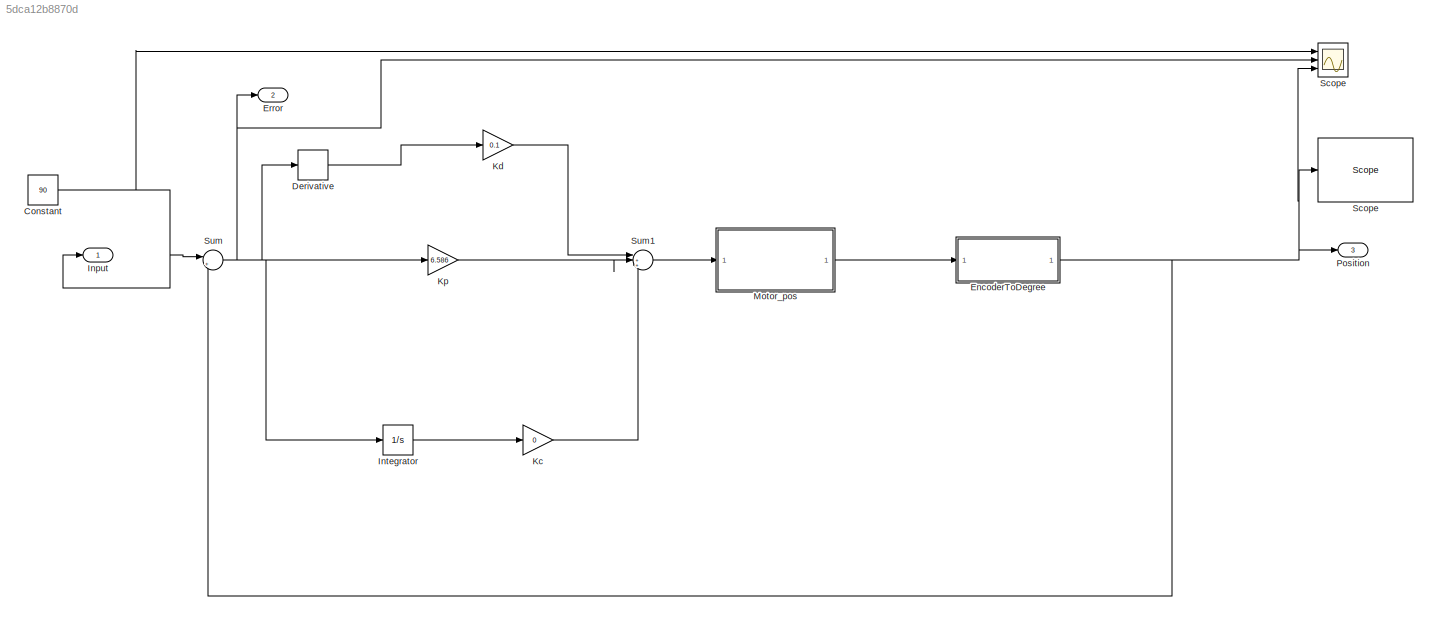
MODEL slx_5dca12b8870d
KIND model
CONFIG AbsTol = auto
CONFIG EnableMultiTasking = on
CONFIG FixedStep = 0.001
CONFIG MaxStep = auto
CONFIG MinStep = auto
CONFIG RelTol = 1e-3
CONFIG SampleTimeConstraint = Unconstrained
CONFIG Solver = FixedStepAuto
CONFIG SolverName = FixedStepAuto
CONFIG StartTime = 0.0
CONFIG StopTime = inf
BLOCK [Constant] Constant
  Value = 90
BLOCK [Derivative] Derivative
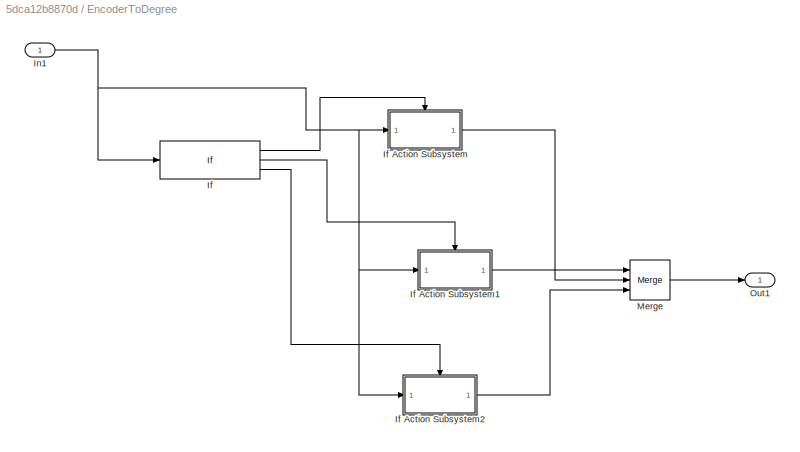
BLOCK [SubSystem] EncoderToDegree
  Ports = [1, 1]
  RequestExecContextInheritance = off
  Variant = off
BLOCK [If] EncoderToDegree/If
  ElseIfExpressions = u1 < 0
  IfExpression = u1 > 360
  Ports = [1, 3]
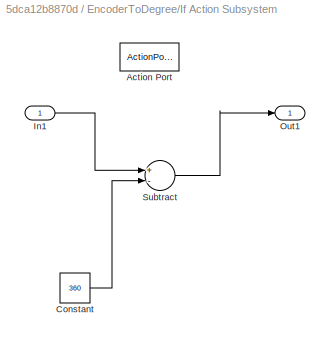
BLOCK [SubSystem] EncoderToDegree/If Action Subsystem
  Ports = [1, 1, 0, 0, 0, 0, 0, 1]
  RequestExecContextInheritance = off
  TreatAsAtomicUnit = on
  Variant = off
BLOCK [ActionPort] EncoderToDegree/If Action Subsystem/Action Port
  ActionType = then
BLOCK [Constant] EncoderToDegree/If Action Subsystem/Constant
  Value = 360
BLOCK [Inport] EncoderToDegree/If Action Subsystem/In1
  IconDisplay = Port number
BLOCK [Outport] EncoderToDegree/If Action Subsystem/Out1
  IconDisplay = Port number
BLOCK [Sum] EncoderToDegree/If Action Subsystem/Subtract
  InputSameDT = off
  Inputs = +-
  OutDataTypeStr = Inherit: Inherit via internal rule
  Ports = [2, 1]
  SaturateOnIntegerOverflow = off
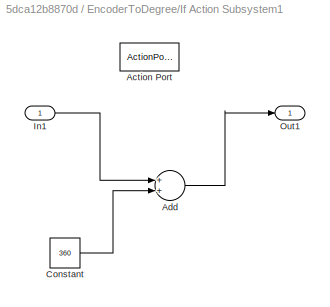
BLOCK [SubSystem] EncoderToDegree/If Action Subsystem1
  Ports = [1, 1, 0, 0, 0, 0, 0, 1]
  RequestExecContextInheritance = off
  TreatAsAtomicUnit = on
  Variant = off
BLOCK [ActionPort] EncoderToDegree/If Action Subsystem1/Action Port
  ActionType = elseif
BLOCK [Sum] EncoderToDegree/If Action Subsystem1/Add
  InputSameDT = off
  OutDataTypeStr = Inherit: Inherit via internal rule
  Ports = [2, 1]
  SaturateOnIntegerOverflow = off
BLOCK [Constant] EncoderToDegree/If Action Subsystem1/Constant
  Value = 360
BLOCK [Inport] EncoderToDegree/If Action Subsystem1/In1
  IconDisplay = Port number
BLOCK [Outport] EncoderToDegree/If Action Subsystem1/Out1
  IconDisplay = Port number
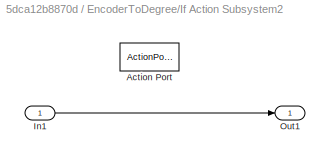
BLOCK [SubSystem] EncoderToDegree/If Action Subsystem2
  Ports = [1, 1, 0, 0, 0, 0, 0, 1]
  RequestExecContextInheritance = off
  TreatAsAtomicUnit = on
  Variant = off
BLOCK [ActionPort] EncoderToDegree/If Action Subsystem2/Action Port
  ActionType = else
BLOCK [Inport] EncoderToDegree/If Action Subsystem2/In1
  IconDisplay = Port number
BLOCK [Outport] EncoderToDegree/If Action Subsystem2/Out1
  IconDisplay = Port number
BLOCK [Inport] EncoderToDegree/In1
  IconDisplay = Port number
BLOCK [Merge] EncoderToDegree/Merge
  Inputs = 3
  Ports = [3, 1]
BLOCK [Outport] EncoderToDegree/Out1
  IconDisplay = Port number
BLOCK [Outport] Error
  IconDisplay = Port number
  Port = 2
  SignalName = errorSig
BLOCK [Outport] Input
  IconDisplay = Port number
BLOCK [Integrator] Integrator
  Ports = [1, 1]
BLOCK [Gain] Kc
  Gain = 0
  OutDataTypeStr = Inherit: Inherit via internal rule
  ParamDataTypeStr = Inherit: Inherit via internal rule
  SaturateOnIntegerOverflow = off
BLOCK [Gain] Kd
  Gain = 0.1
  OutDataTypeStr = Inherit: Inherit via internal rule
  ParamDataTypeStr = Inherit: Inherit via internal rule
  SaturateOnIntegerOverflow = off
BLOCK [Gain] Kp
  Gain = 6.586
  OutDataTypeStr = Inherit: Inherit via internal rule
  ParamDataTypeStr = Inherit: Inherit via internal rule
  SaturateOnIntegerOverflow = off
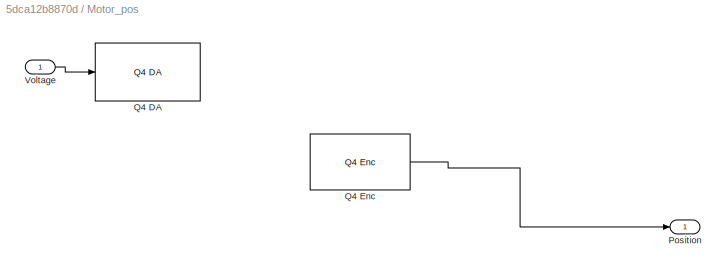
BLOCK [SubSystem] Motor_pos
  Ports = [1, 1]
  RequestExecContextInheritance = off
  Variant = off
BLOCK [Outport] Motor_pos/Position
  IconDisplay = Port number
BLOCK [Reference] Motor_pos/Q4 DA   REF=xpcquanserlib/D//A/Q4 DA 
  Ports = [1]
  SourceBlock = xpcquanserlib/D//A/Q4 DA
  SourceProductBaseCode = XP
  SourceProductName = Simulink Real-Time
  SourceType = quanser_q4_da
BLOCK [Reference] Motor_pos/Q4 Enc   REF=xpcquanserlib/Incremental
Encoder/Q4 Enc 
  Ports = [0, 1]
  SourceBlock = xpcquanserlib/Incremental\nEncoder/Q4 Enc
  SourceProductBaseCode = XP
  SourceProductName = Simulink Real-Time
  SourceType = quanser_q4_enc
BLOCK [Inport] Motor_pos/Voltage
  IconDisplay = Port number
BLOCK [Outport] Position
  IconDisplay = Port number
  Port = 3
BLOCK [Scope] Scope
  NumInputPorts = 3
  Ports = [3]
  ScopeSpecificationString = Simulink.scopes.TimeScopeBlockCfg('CurrentConfiguration', extmgr.ConfigurationSet(extmgr.Configuration('Core','General UI',true),extmgr.Configuration('Core','Source UI',true),extmgr.Configuration('Sources','WiredSimulink',true),extmgr.Configuration('Visuals','Time Domain',true,'SerializedDisplays',{struct('MinYLimReal','-141.25','MaxYLimReal','231.25','YLabelReal','','MinYLimMag',' 0.00000','MaxYL...<+1405ch>
BLOCK [Reference] Scope   REF=slrtlib/Displays and
Logging/Scope 
  Ports = [1]
  SourceBlock = slrtlib/Displays and\nLogging/Scope
  SourceProductBaseCode = XP
  SourceProductName = Simulink Real-Time
  SourceType = xpcscopeblock
BLOCK [Sum] Sum
  IconShape = round
  InputSameDT = off
  Inputs = |+-
  OutDataTypeStr = Inherit: Inherit via internal rule
  Ports = [2, 1]
  SaturateOnIntegerOverflow = off
BLOCK [Sum] Sum1
  IconShape = round
  InputSameDT = off
  Inputs = |+++
  OutDataTypeStr = Inherit: Inherit via internal rule
  Ports = [3, 1]
  SaturateOnIntegerOverflow = off
NET Constant:1 -> Input:1, Scope:1, Sum:1
LINE Derivative:1 -> Kd:1
LINE EncoderToDegree/If Action Subsystem/Constant:1 -> EncoderToDegree/If Action Subsystem/Subtract:2
LINE EncoderToDegree/If Action Subsystem/In1:1 -> EncoderToDegree/If Action Subsystem/Subtract:1
LINE EncoderToDegree/If Action Subsystem/Subtract:1 -> EncoderToDegree/If Action Subsystem/Out1:1
LINE EncoderToDegree/If Action Subsystem1/Add:1 -> EncoderToDegree/If Action Subsystem1/Out1:1
LINE EncoderToDegree/If Action Subsystem1/Constant:1 -> EncoderToDegree/If Action Subsystem1/Add:2
LINE EncoderToDegree/If Action Subsystem1/In1:1 -> EncoderToDegree/If Action Subsystem1/Add:1
LINE EncoderToDegree/If Action Subsystem1:1 -> EncoderToDegree/Merge:2
LINE EncoderToDegree/If Action Subsystem2/In1:1 -> EncoderToDegree/If Action Subsystem2/Out1:1
LINE EncoderToDegree/If Action Subsystem2:1 -> EncoderToDegree/Merge:3
LINE EncoderToDegree/If Action Subsystem:1 -> EncoderToDegree/Merge:1
LINE EncoderToDegree/If:1 -> EncoderToDegree/If Action Subsystem:ifaction
LINE EncoderToDegree/If:2 -> EncoderToDegree/If Action Subsystem1:ifaction
LINE EncoderToDegree/If:3 -> EncoderToDegree/If Action Subsystem2:ifaction
NET EncoderToDegree/In1:1 -> EncoderToDegree/If Action Subsystem1:1, EncoderToDegree/If Action Subsystem2:1, EncoderToDegree/If Action Subsystem:1, EncoderToDegree/If:1
LINE EncoderToDegree/Merge:1 -> EncoderToDegree/Out1:1
NET EncoderToDegree:1 -> Position:1, Scope :1, Scope:3, Sum:2
LINE Integrator:1 -> Kc:1
LINE Kc:1 -> Sum1:3
LINE Kd:1 -> Sum1:1
LINE Kp:1 -> Sum1:2
LINE Motor_pos/Q4 Enc :1 -> Motor_pos/Position:1
LINE Motor_pos/Voltage:1 -> Motor_pos/Q4 DA :1
LINE Motor_pos:1 -> EncoderToDegree:1
LINE Sum1:1 -> Motor_pos:1
NET Sum:1 -> Derivative:1, Error:1, Integrator:1, Kp:1, Scope:2
note: NET lines group one-source signal fan-out (src -> all destinations, sorted); 1:1 wires keep LINE
